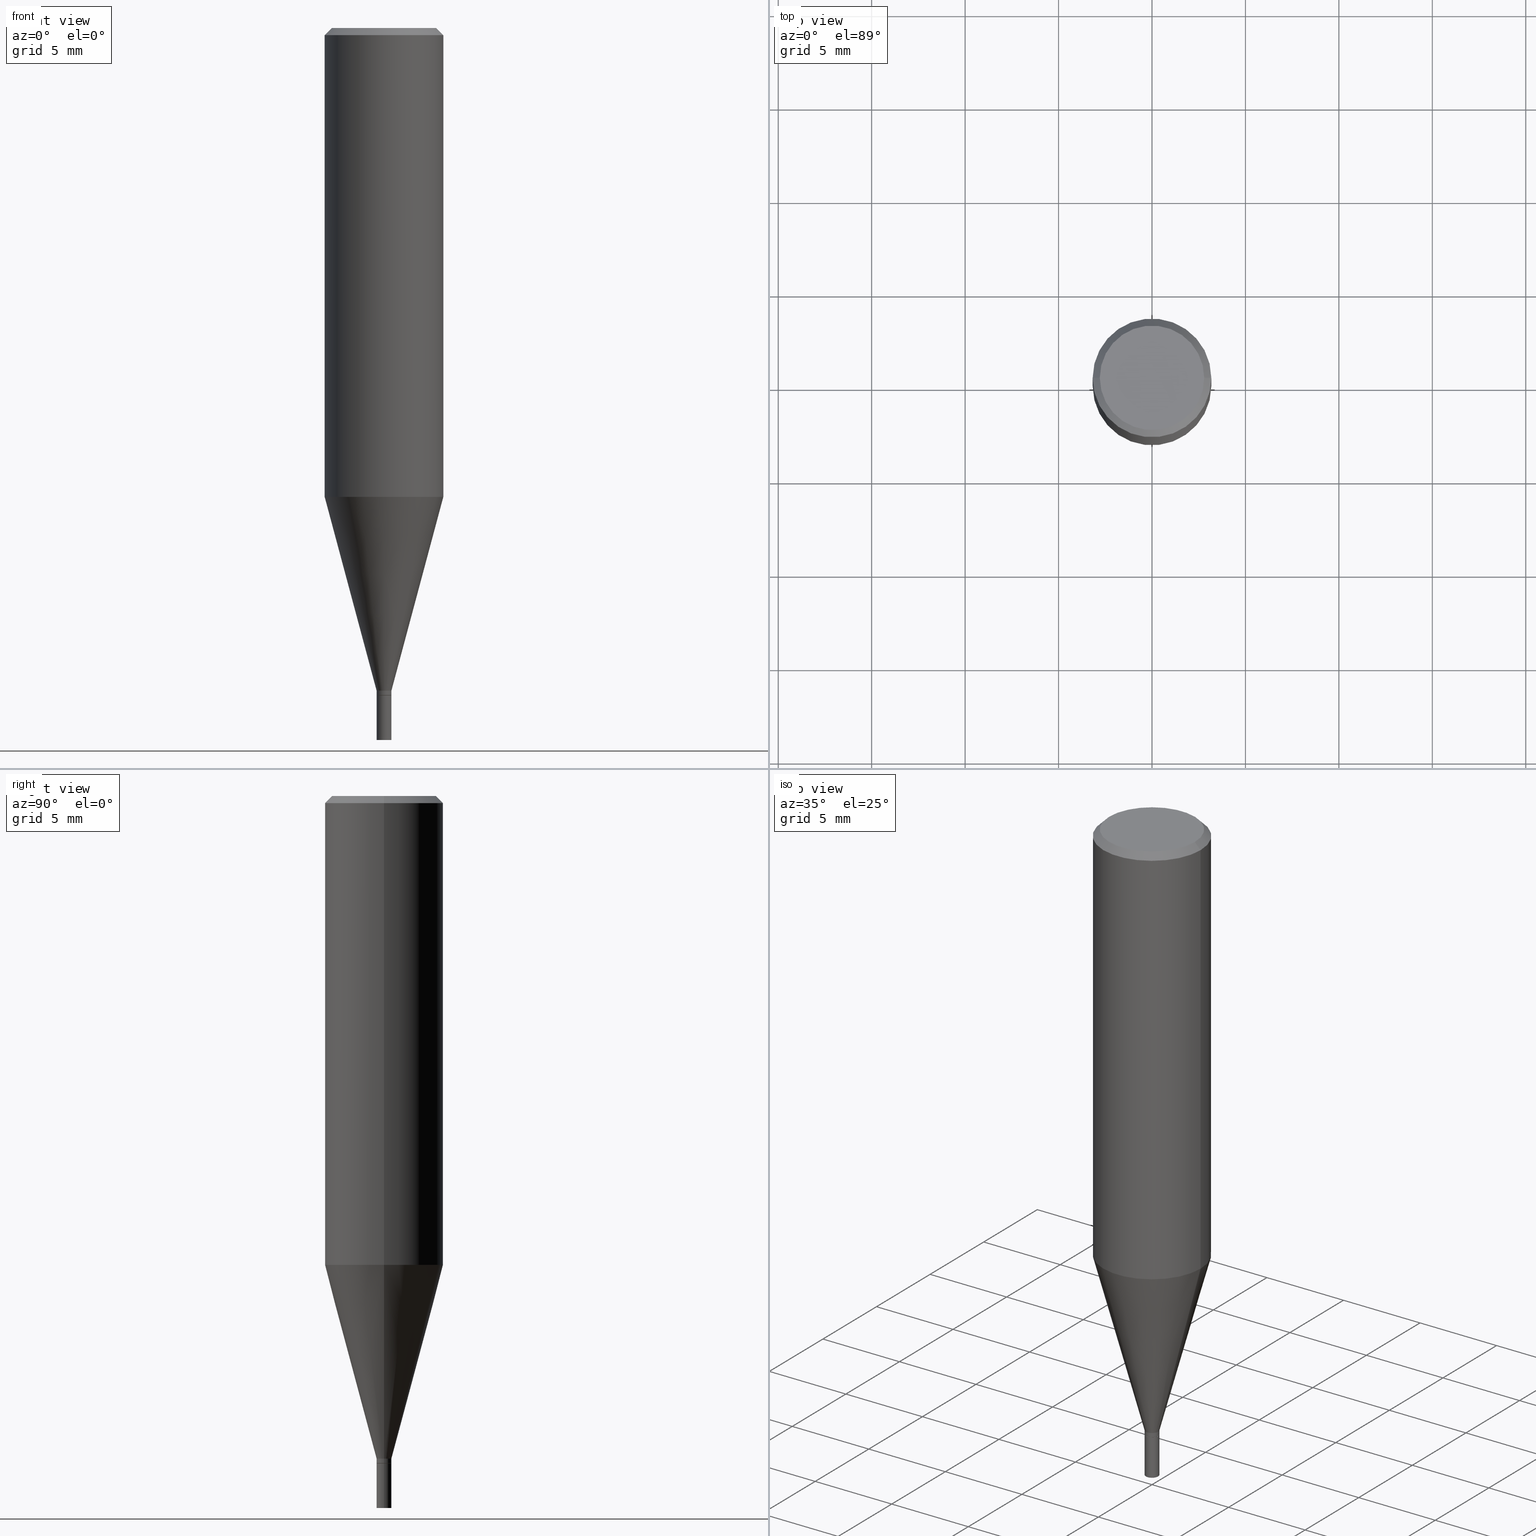
[diagram: canonical four-view strip — front | top / right | iso, engineering-drawing reading convention]
A machine part, canonical four-view strip (front | top / right | iso — engineering-drawing reading convention). The complete STEP part file that produces these views, byte-faithful:
ISO-10303-21;
HEADER;
FILE_DESCRIPTION (( 'STEP AP203' ),
    '1' );
FILE_NAME ('05274.STEP',
    '2024-03-14T18:02:43',
    ( '' ),
    ( '' ),
    'SwSTEP 2.0',
    'SolidWorks 2023',
    '' );
FILE_SCHEMA (( 'CONFIG_CONTROL_DESIGN' ));
ENDSEC;

DATA;
#1 = ORIENTED_EDGE ( 'NONE', *, *, #149, .F. ) ;
#2 = LOCAL_TIME ( 14, 2, 43.00000000000000000, #122 ) ;
#3 = APPROVAL ( #160, 'UNSPECIFIED' ) ;
#4 =( CONVERSION_BASED_UNIT ( 'INCH', #390 ) LENGTH_UNIT ( ) NAMED_UNIT ( #38 ) );
#5 = MECHANICAL_CONTEXT ( 'NONE', #187, 'mechanical' ) ;
#6 = ORIENTED_EDGE ( 'NONE', *, *, #9, .T. ) ;
#7 = APPROVAL_ROLE ( '' ) ;
#8 = EDGE_LOOP ( 'NONE', ( #302, #44, #381, #288 ) ) ;
#9 = EDGE_CURVE ( 'NONE', #235, #320, #152, .T. ) ;
#10 = DIRECTION ( 'NONE',  ( 1.000000000000000000, -6.982962677686255667E-15, 0.000000000000000000 ) ) ;
#11 = EDGE_LOOP ( 'NONE', ( #148, #347, #136, #71 ) ) ;
#12 = ADVANCED_BREP_SHAPE_REPRESENTATION ( '05274', ( #406, #81, #265 ), #365 ) ;
#13 = VECTOR ( 'NONE', #144, 39.37007874015747433 ) ;
#14 = ORIENTED_EDGE ( 'NONE', *, *, #336, .F. ) ;
#15 = CARTESIAN_POINT ( 'NONE',  ( 3.413874453434450954E-29, -4.874107949025031235E-15, -1.396000000000000130 ) ) ;
#16 = CC_DESIGN_DATE_AND_TIME_ASSIGNMENT ( #372, #268, ( #105 ) ) ;
#17 = EDGE_LOOP ( 'NONE', ( #223, #84, #396, #133 ) ) ;
#18 = LINE ( 'NONE', #394, #354 ) ;
#19 = CARTESIAN_POINT ( 'NONE',  ( 0.01559999999999999928, -5.346156226036624733E-15, -1.500000000000000222 ) ) ;
#20 = ORIENTED_EDGE ( 'NONE', *, *, #272, .T. ) ;
#21 = DIRECTION ( 'NONE',  ( 0.2588190451025213501, 1.565188264969621968E-15, 0.9659258262890682012 ) ) ;
#22 = CONICAL_SURFACE ( 'NONE', #79, 0.1250000000000000000, 0.7853981633974442822 ) ;
#23 = ORIENTED_EDGE ( 'NONE', *, *, #67, .F. ) ;
#24 = DIRECTION ( 'NONE',  ( 1.000000000000000000, -6.982962677686266711E-15, 4.880309236314112093E-29 ) ) ;
#25 = CARTESIAN_POINT ( 'NONE',  ( 3.668203209277705088E-31, -5.237222008264718399E-17, -0.01499999999999999944 ) ) ;
#26 = VERTEX_POINT ( 'NONE', #317 ) ;
#27 = CARTESIAN_POINT ( 'NONE',  ( 3.668203209277705088E-31, -5.237222008264718399E-17, -0.01499999999999999944 ) ) ;
#28 = EDGE_CURVE ( 'NONE', #446, #207, #161, .T. ) ;
#29 = CARTESIAN_POINT ( 'NONE',  ( 3.576687321579069994E-29, -5.368277968210015545E-15, -1.500000000000000222 ) ) ;
#30 = VERTEX_POINT ( 'NONE', #164 ) ;
#31 = DIRECTION ( 'NONE',  ( 1.000000000000000000, -6.982962677686250144E-15, 0.000000000000000000 ) ) ;
#32 = DIRECTION ( 'NONE',  ( -1.000000000000000000, 6.982962677686265922E-15, -4.876176775795935793E-29 ) ) ;
#33 = FACE_OUTER_BOUND ( 'NONE', #377, .T. ) ;
#34 = CYLINDRICAL_SURFACE ( 'NONE', #335, 0.01559999999999991949 ) ;
#35 = CIRCLE ( 'NONE', #259, 0.01559999999999999928 ) ;
#36 = AXIS2_PLACEMENT_3D ( 'NONE', #64, #89, #362 ) ;
#37 = EDGE_CURVE ( 'NONE', #320, #235, #184, .T. ) ;
#38 = DIMENSIONAL_EXPONENTS ( 1.000000000000000000, 0.000000000000000000, 0.000000000000000000, 0.000000000000000000, 0.000000000000000000, 0.000000000000000000, 0.000000000000000000 ) ;
#39 = PERSON_AND_ORGANIZATION ( #188, #180 ) ;
#40 = ORIENTED_EDGE ( 'NONE', *, *, #416, .F. ) ;
#41 = AXIS2_PLACEMENT_3D ( 'NONE', #256, #409, #411 ) ;
#42 = AXIS2_PLACEMENT_3D ( 'NONE', #54, #326, #24 ) ;
#43 = EDGE_CURVE ( 'NONE', #282, #320, #426, .T. ) ;
#44 = ORIENTED_EDGE ( 'NONE', *, *, #67, .T. ) ;
#45 = PERSON_AND_ORGANIZATION ( #188, #180 ) ;
#46 = CARTESIAN_POINT ( 'NONE',  ( 3.437106407093210258E-29, -4.907277021744042169E-15, -1.405500000000000416 ) ) ;
#47 = ORIENTED_EDGE ( 'NONE', *, *, #233, .F. ) ;
#48 = PERSON_AND_ORGANIZATION ( #188, #180 ) ;
#49 = CIRCLE ( 'NONE', #299, 0.1250000000000000000 ) ;
#50 = CARTESIAN_POINT ( 'NONE',  ( 3.413874453434450954E-29, -4.874107949025031235E-15, -1.396000000000000130 ) ) ;
#51 = CARTESIAN_POINT ( 'NONE',  ( 3.413874453434450954E-29, -4.874107949025031235E-15, -1.396000000000000130 ) ) ;
#52 = CARTESIAN_POINT ( 'NONE',  ( 2.415422900103406254E-29, -3.448583747948643968E-15, -0.9877136416519656237 ) ) ;
#53 = ORIENTED_EDGE ( 'NONE', *, *, #159, .F. ) ;
#54 = CARTESIAN_POINT ( 'NONE',  ( -2.818101529822314113E-45, 4.023502110292317032E-31, 1.152376805091402685E-16 ) ) ;
#55 = DIRECTION ( 'NONE',  ( -2.445468806185136597E-29, 3.491481338843145583E-15, 1.000000000000000000 ) ) ;
#56 = EDGE_LOOP ( 'NONE', ( #428, #130, #165, #40 ) ) ;
#57 = DIRECTION ( 'NONE',  ( -1.000000000000000000, 6.982962677686266711E-15, 0.000000000000000000 ) ) ;
#58 = CIRCLE ( 'NONE', #369, 0.01559999999999999928 ) ;
#59 = DIRECTION ( 'NONE',  ( 1.000000000000000000, -6.982962677686266711E-15, 4.876176775795935793E-29 ) ) ;
#60 = DIRECTION ( 'NONE',  ( 2.445468806185136597E-29, -3.491481338843145583E-15, -1.000000000000000000 ) ) ;
#61 = EDGE_CURVE ( 'NONE', #339, #282, #185, .T. ) ;
#62 = CARTESIAN_POINT ( 'NONE',  ( 0.000000000000000000, 0.000000000000000000, 0.000000000000000000 ) ) ;
#63 = EDGE_LOOP ( 'NONE', ( #110, #98 ) ) ;
#64 = CARTESIAN_POINT ( 'NONE',  ( 3.413874453434450954E-29, -4.874107949025031235E-15, -1.396000000000000130 ) ) ;
#65 = LINE ( 'NONE', #366, #192 ) ;
#66 = FACE_OUTER_BOUND ( 'NONE', #250, .T. ) ;
#67 = EDGE_CURVE ( 'NONE', #124, #310, #126, .T. ) ;
#68 = UNCERTAINTY_MEASURE_WITH_UNIT (LENGTH_MEASURE( 1.000000000000000082E-05 ), #4, 'distance_accuracy_value', 'NONE');
#69 = CIRCLE ( 'NONE', #230, 0.01509999999999999884 ) ;
#70 = CARTESIAN_POINT ( 'NONE',  ( -0.01559999999999992122, -4.796432354965466915E-15, -1.405500000000000416 ) ) ;
#71 = ORIENTED_EDGE ( 'NONE', *, *, #312, .F. ) ;
#72 = CIRCLE ( 'NONE', #90, 0.1100000000000000006 ) ;
#73 =( NAMED_UNIT ( * ) PLANE_ANGLE_UNIT ( ) SI_UNIT ( $, .RADIAN. ) );
#74 = PERSON_AND_ORGANIZATION_ROLE ( 'creator' ) ;
#75 = COORDINATED_UNIVERSAL_TIME_OFFSET ( 5, 0, .BEHIND. ) ;
#76 = APPROVAL_DATE_TIME ( #340, #433 ) ;
#77 = ADVANCED_FACE ( 'NONE', ( #280 ), #308, .T. ) ;
#78 = ORIENTED_EDGE ( 'NONE', *, *, #279, .F. ) ;
#79 = AXIS2_PLACEMENT_3D ( 'NONE', #25, #463, #290 ) ;
#80 = APPROVAL_ROLE ( '' ) ;
#81 = MANIFOLD_SOLID_BREP ( 'Body-Move/Copy2[2]', #237 ) ;
#82 = ORIENTED_EDGE ( 'NONE', *, *, #416, .T. ) ;
#83 = DIRECTION ( 'NONE',  ( 1.000000000000000000, -6.982962677686266711E-15, 0.000000000000000000 ) ) ;
#84 = ORIENTED_EDGE ( 'NONE', *, *, #37, .T. ) ;
#85 = PERSON_AND_ORGANIZATION_ROLE ( 'design_supplier' ) ;
#86 = CC_DESIGN_PERSON_AND_ORGANIZATION_ASSIGNMENT ( #125, #449, ( #186 ) ) ;
#87 = CYLINDRICAL_SURFACE ( 'NONE', #431, 0.01559999999999999928 ) ;
#88 = VERTEX_POINT ( 'NONE', #206 ) ;
#89 = DIRECTION ( 'NONE',  ( -2.445468806185136597E-29, 3.491481338843145583E-15, 1.000000000000000000 ) ) ;
#90 = AXIS2_PLACEMENT_3D ( 'NONE', #391, #437, #179 ) ;
#91 = CARTESIAN_POINT ( 'NONE',  ( 0.1250000000000000000, -9.099344698040885245E-16, -0.01499999999999999944 ) ) ;
#92 = ORIENTED_EDGE ( 'NONE', *, *, #195, .F. ) ;
#93 = FACE_OUTER_BOUND ( 'NONE', #162, .T. ) ;
#94 = DIRECTION ( 'NONE',  ( 1.000000000000000000, -6.982962677686250144E-15, 0.000000000000000000 ) ) ;
#95 = CARTESIAN_POINT ( 'NONE',  ( 0.01559999999999991949, -1.089342177719052000E-16, 7.606835770241620664E-31 ) ) ;
#96 = DIRECTION ( 'NONE',  ( 1.000000000000000000, -6.982962677686266711E-15, 0.000000000000000000 ) ) ;
#97 = APPROVAL ( #232, 'UNSPECIFIED' ) ;
#98 = ORIENTED_EDGE ( 'NONE', *, *, #448, .T. ) ;
#99 = DIRECTION ( 'NONE',  ( -0.7071067811865446862, 2.468850131082227084E-15, -0.7071067811865503483 ) ) ;
#100 = FACE_OUTER_BOUND ( 'NONE', #116, .T. ) ;
#101 = CONICAL_SURFACE ( 'NONE', #36, 0.01559999999999991775, 0.2617993877991500740 ) ;
#102 = EDGE_LOOP ( 'NONE', ( #261, #432, #275, #342 ) ) ;
#103 = DIRECTION ( 'NONE',  ( 1.000000000000000000, -6.982962677686283277E-15, 0.000000000000000000 ) ) ;
#104 = PLANE ( 'NONE',  #238 ) ;
#105 = PRODUCT_DEFINITION ( 'UNKNOWN', '', #346, #258 ) ;
#106 = DIRECTION ( 'NONE',  ( -2.445468806185136597E-29, 3.491481338843145583E-15, 1.000000000000000000 ) ) ;
#107 = CARTESIAN_POINT ( 'NONE',  ( 0.000000000000000000, 0.000000000000000000, 0.000000000000000000 ) ) ;
#108 = CARTESIAN_POINT ( 'NONE',  ( 0.000000000000000000, 0.000000000000000000, 0.000000000000000000 ) ) ;
#109 = CONICAL_SURFACE ( 'NONE', #197, 0.01559999999999991775, 0.2617993877991500740 ) ;
#110 = ORIENTED_EDGE ( 'NONE', *, *, #255, .T. ) ;
#111 = CC_DESIGN_PERSON_AND_ORGANIZATION_ASSIGNMENT ( #228, #74, ( #105 ) ) ;
#112 = CIRCLE ( 'NONE', #345, 0.1250000000000000000 ) ;
#113 = CC_DESIGN_SECURITY_CLASSIFICATION ( #186, ( #346 ) ) ;
#114 = APPROVAL_ROLE ( '' ) ;
#115 = PERSON_AND_ORGANIZATION_ROLE ( 'design_owner' ) ;
#116 = EDGE_LOOP ( 'NONE', ( #23, #413, #355, #424 ) ) ;
#117 = VERTEX_POINT ( 'NONE', #19 ) ;
#118 = DATE_TIME_ROLE ( 'classification_date' ) ;
#119 = CARTESIAN_POINT ( 'NONE',  ( 3.668203209277704895E-29, -5.237222008264718177E-15, -1.500000000000000222 ) ) ;
#120 = EDGE_CURVE ( 'NONE', #286, #117, #128, .T. ) ;
#121 = EDGE_LOOP ( 'NONE', ( #315, #267 ) ) ;
#122 = COORDINATED_UNIVERSAL_TIME_OFFSET ( 5, 0, .BEHIND. ) ;
#123 = DIRECTION ( 'NONE',  ( -2.445468806185136597E-29, 3.491481338843145583E-15, 1.000000000000000000 ) ) ;
#124 = VERTEX_POINT ( 'NONE', #422 ) ;
#125 = PERSON_AND_ORGANIZATION ( #188, #180 ) ;
#126 = LINE ( 'NONE', #455, #219 ) ;
#127 = FACE_OUTER_BOUND ( 'NONE', #389, .T. ) ;
#128 = CIRCLE ( 'NONE', #138, 0.01559999999999999928 ) ;
#129 = CONICAL_SURFACE ( 'NONE', #309, 0.01509999999999999884, 0.7853981633974718157 ) ;
#130 = ORIENTED_EDGE ( 'NONE', *, *, #28, .T. ) ;
#131 = EDGE_CURVE ( 'NONE', #30, #282, #132, .T. ) ;
#132 = LINE ( 'NONE', #274, #291 ) ;
#133 = ORIENTED_EDGE ( 'NONE', *, *, #141, .F. ) ;
#134 = DIRECTION ( 'NONE',  ( -2.445468806185136877E-29, 3.491481338843145188E-15, 1.000000000000000000 ) ) ;
#135 = DIRECTION ( 'NONE',  ( 0.7071067811865642261, -2.468850131082431399E-15, 0.7071067811865309194 ) ) ;
#136 = ORIENTED_EDGE ( 'NONE', *, *, #195, .T. ) ;
#137 = DIRECTION ( 'NONE',  ( -2.445468806185136597E-29, 3.491481338843145583E-15, 1.000000000000000000 ) ) ;
#138 = AXIS2_PLACEMENT_3D ( 'NONE', #119, #387, #169 ) ;
#139 = DIRECTION ( 'NONE',  ( 1.000000000000000000, -6.982962677686266711E-15, 4.876176775795935793E-29 ) ) ;
#140 = LOCAL_TIME ( 14, 2, 43.00000000000000000, #75 ) ;
#141 = EDGE_CURVE ( 'NONE', #124, #26, #49, .T. ) ;
#142 = DIRECTION ( 'NONE',  ( 1.000000000000000000, -6.982962677686265922E-15, 4.876176775795935793E-29 ) ) ;
#143 = CARTESIAN_POINT ( 'NONE',  ( 0.000000000000000000, 0.000000000000000000, 0.000000000000000000 ) ) ;
#144 = DIRECTION ( 'NONE',  ( -0.2588190451025213501, 5.211531920934551042E-15, 0.9659258262890682012 ) ) ;
#145 = VECTOR ( 'NONE', #311, 39.37007874015748143 ) ;
#146 = DIRECTION ( 'NONE',  ( -2.445468806185136597E-29, 3.491481338843145583E-15, 1.000000000000000000 ) ) ;
#147 = AXIS2_PLACEMENT_3D ( 'NONE', #400, #212, #331 ) ;
#148 = ORIENTED_EDGE ( 'NONE', *, *, #131, .F. ) ;
#149 = EDGE_CURVE ( 'NONE', #26, #124, #112, .T. ) ;
#150 = APPLICATION_PROTOCOL_DEFINITION ( 'international standard', 'config_control_design', 1994, #187 ) ;
#151 = DIRECTION ( 'NONE',  ( 1.000000000000000000, 0.000000000000000000, 0.000000000000000000 ) ) ;
#152 = CIRCLE ( 'NONE', #218, 0.01559999999999991775 ) ;
#153 = AXIS2_PLACEMENT_3D ( 'NONE', #427, #462, #292 ) ;
#154 = EDGE_LOOP ( 'NONE', ( #450, #325, #47, #53 ) ) ;
#155 = DIRECTION ( 'NONE',  ( -2.445468806185136877E-29, 3.491481338843145188E-15, 1.000000000000000000 ) ) ;
#156 = ORIENTED_EDGE ( 'NONE', *, *, #120, .F. ) ;
#157 = LOCAL_TIME ( 14, 2, 43.00000000000000000, #375 ) ;
#158 = DIRECTION ( 'NONE',  ( -2.445468806185136597E-29, 3.491481338843145583E-15, 1.000000000000000000 ) ) ;
#159 = EDGE_CURVE ( 'NONE', #117, #420, #380, .T. ) ;
#160 = APPROVAL_STATUS ( 'not_yet_approved' ) ;
#161 = LINE ( 'NONE', #91, #145 ) ;
#162 = EDGE_LOOP ( 'NONE', ( #20, #273, #368, #92 ) ) ;
#163 = DIRECTION ( 'NONE',  ( 1.000000000000000000, -6.982962677686257244E-15, 0.000000000000000000 ) ) ;
#164 = CARTESIAN_POINT ( 'NONE',  ( -0.01509999999999999884, -4.799081582139578116E-15, -1.406000000000000139 ) ) ;
#165 = ORIENTED_EDGE ( 'NONE', *, *, #323, .T. ) ;
#166 = EDGE_CURVE ( 'NONE', #310, #207, #453, .T. ) ;
#167 = AXIS2_PLACEMENT_3D ( 'NONE', #108, #358, #139 ) ;
#168 = APPROVAL_PERSON_ORGANIZATION ( #39, #433, #7 ) ;
#169 = DIRECTION ( 'NONE',  ( 1.000000000000000000, -6.982962677686283277E-15, 0.000000000000000000 ) ) ;
#170 = CARTESIAN_POINT ( 'NONE',  ( 3.438329141496302499E-29, -4.909022762413463673E-15, -1.406000000000000139 ) ) ;
#171 = DIRECTION ( 'NONE',  ( -2.445468806185136877E-29, 3.491481338843145188E-15, 1.000000000000000000 ) ) ;
#172 = ORIENTED_EDGE ( 'NONE', *, *, #28, .F. ) ;
#173 = PLANE ( 'NONE',  #271 ) ;
#174 = FACE_OUTER_BOUND ( 'NONE', #201, .T. ) ;
#175 = ADVANCED_FACE ( 'NONE', ( #419 ), #87, .T. ) ;
#176 = VERTEX_POINT ( 'NONE', #220 ) ;
#177 = CARTESIAN_POINT ( 'NONE',  ( 0.01559999999999992122, -5.016211239515947147E-15, -1.405500000000000416 ) ) ;
#178 = VECTOR ( 'NONE', #171, 39.37007874015748143 ) ;
#179 = DIRECTION ( 'NONE',  ( 1.000000000000000000, -6.982962677686266711E-15, 4.880309236314112093E-29 ) ) ;
#180 = ORGANIZATION ( 'UNSPECIFIED', 'UNSPECIFIED', '' ) ;
#181 = CARTESIAN_POINT ( 'NONE',  ( -0.01559999999999999928, -4.962277718560516065E-15, -1.406000000000000139 ) ) ;
#182 = CARTESIAN_POINT ( 'NONE',  ( 0.1250000000000000000, -9.252425547934304180E-16, -0.01499999999999999944 ) ) ;
#183 = CC_DESIGN_PERSON_AND_ORGANIZATION_ASSIGNMENT ( #305, #115, ( #319 ) ) ;
#184 = CIRCLE ( 'NONE', #444, 0.01559999999999991775 ) ;
#185 = CIRCLE ( 'NONE', #423, 0.01559999999999992122 ) ;
#186 = SECURITY_CLASSIFICATION ( '', '', #199 ) ;
#187 = APPLICATION_CONTEXT ( 'configuration controlled 3d designs of mechanical parts and assemblies' ) ;
#188 = PERSON ( 'UNSPECIFIED', 'UNSPECIFIED', 'UNSPECIFIED', ('UNSPECIFIED'), ('UNSPECIFIED'), ('UNSPECIFIED') ) ;
#189 = DIRECTION ( 'NONE',  ( 0.000000000000000000, 0.000000000000000000, 1.000000000000000000 ) ) ;
#190 = ADVANCED_FACE ( 'NONE', ( #100 ), #440, .T. ) ;
#191 = APPLICATION_PROTOCOL_DEFINITION ( 'international standard', 'config_control_design', 1994, #262 ) ;
#192 = VECTOR ( 'NONE', #135, 39.37007874015748143 ) ;
#193 = ORIENTED_EDGE ( 'NONE', *, *, #43, .T. ) ;
#194 = CARTESIAN_POINT ( 'NONE',  ( -0.01559999999999991949, 1.108446667785750569E-16, -7.673538740797613077E-31 ) ) ;
#195 = EDGE_CURVE ( 'NONE', #88, #339, #65, .T. ) ;
#196 = DIRECTION ( 'NONE',  ( -2.445468806185136877E-29, 3.491481338843145188E-15, 1.000000000000000000 ) ) ;
#197 = AXIS2_PLACEMENT_3D ( 'NONE', #51, #356, #163 ) ;
#198 = ORIENTED_EDGE ( 'NONE', *, *, #374, .F. ) ;
#199 = SECURITY_CLASSIFICATION_LEVEL ( 'unclassified' ) ;
#200 = DIRECTION ( 'NONE',  ( -2.445468806185136597E-29, 3.491481338843145583E-15, 1.000000000000000000 ) ) ;
#201 = EDGE_LOOP ( 'NONE', ( #198, #156 ) ) ;
#202 = DIRECTION ( 'NONE',  ( 1.000000000000000000, -6.982962677686266711E-15, 4.876176775795935793E-29 ) ) ;
#203 = ADVANCED_FACE ( 'NONE', ( #296 ), #399, .T. ) ;
#204 = VERTEX_POINT ( 'NONE', #181 ) ;
#205 = CARTESIAN_POINT ( 'NONE',  ( 3.438329141496302499E-29, -4.909022762413463673E-15, -1.406000000000000139 ) ) ;
#206 = CARTESIAN_POINT ( 'NONE',  ( 0.01509999999999999884, -5.014465498846526433E-15, -1.406000000000000139 ) ) ;
#207 = VERTEX_POINT ( 'NONE', #182 ) ;
#208 = CIRCLE ( 'NONE', #41, 0.01559999999999992122 ) ;
#209 = CARTESIAN_POINT ( 'NONE',  ( 3.668203209277705088E-31, -5.237222008264718399E-17, -0.01499999999999999944 ) ) ;
#210 = VECTOR ( 'NONE', #459, 39.37007874015748143 ) ;
#211 = APPROVAL_PERSON_ORGANIZATION ( #443, #97, #114 ) ;
#212 = DIRECTION ( 'NONE',  ( -2.445468806185136597E-29, 3.491481338843145583E-15, 1.000000000000000000 ) ) ;
#213 = CARTESIAN_POINT ( 'NONE',  ( -0.1250000000000000000, 8.204981146281362596E-16, -0.01499999999999999944 ) ) ;
#214 = ADVANCED_FACE ( 'NONE', ( #33 ), #333, .F. ) ;
#215 = DIRECTION ( 'NONE',  ( 1.000000000000000000, -6.982962677686266711E-15, 4.876176775795935793E-29 ) ) ;
#216 = CARTESIAN_POINT ( 'NONE',  ( 3.438329141496302499E-29, -4.909022762413463673E-15, -1.406000000000000139 ) ) ;
#217 = CARTESIAN_POINT ( 'NONE',  ( -0.01559999999999991775, -4.763263282246455981E-15, -1.396000000000000130 ) ) ;
#218 = AXIS2_PLACEMENT_3D ( 'NONE', #15, #55, #379 ) ;
#219 = VECTOR ( 'NONE', #155, 39.37007874015748143 ) ;
#220 = CARTESIAN_POINT ( 'NONE',  ( -0.1100000000000000006, 7.943120045868129172E-16, 1.152376805091348205E-16 ) ) ;
#221 = CARTESIAN_POINT ( 'NONE',  ( -0.01559999999999999928, -4.962277718560516065E-15, -1.500000000000000222 ) ) ;
#222 = EDGE_CURVE ( 'NONE', #320, #124, #430, .T. ) ;
#223 = ORIENTED_EDGE ( 'NONE', *, *, #222, .F. ) ;
#224 =( NAMED_UNIT ( * ) SI_UNIT ( $, .STERADIAN. ) SOLID_ANGLE_UNIT ( ) );
#225 = CONICAL_SURFACE ( 'NONE', #461, 0.1250000000000000000, 0.7853981633974442822 ) ;
#226 = ADVANCED_FACE ( 'NONE', ( #260 ), #300, .T. ) ;
#227 = CALENDAR_DATE ( 2024, 14, 3 ) ;
#228 = PERSON_AND_ORGANIZATION ( #188, #180 ) ;
#229 = PERSON_AND_ORGANIZATION ( #188, #180 ) ;
#230 = AXIS2_PLACEMENT_3D ( 'NONE', #367, #457, #334 ) ;
#231 = LOCAL_TIME ( 14, 2, 43.00000000000000000, #313 ) ;
#232 = APPROVAL_STATUS ( 'not_yet_approved' ) ;
#233 = EDGE_CURVE ( 'NONE', #420, #204, #35, .T. ) ;
#234 = CALENDAR_DATE ( 2024, 14, 3 ) ;
#235 = VERTEX_POINT ( 'NONE', #253 ) ;
#236 = CARTESIAN_POINT ( 'NONE',  ( 0.000000000000000000, 0.000000000000000000, 0.000000000000000000 ) ) ;
#237 = CLOSED_SHELL ( 'NONE', ( #297, #441, #303, #226, #404, #357, #190, #398, #338, #370, #77, #203 ) ) ;
#238 = AXIS2_PLACEMENT_3D ( 'NONE', #29, #460, #294 ) ;
#239 = ORIENTED_EDGE ( 'NONE', *, *, #255, .F. ) ;
#240 = APPROVAL_PERSON_ORGANIZATION ( #45, #3, #80 ) ;
#241 = LINE ( 'NONE', #353, #283 ) ;
#242 = PRODUCT_RELATED_PRODUCT_CATEGORY ( 'detail', '', ( #319 ) ) ;
#243 = DIRECTION ( 'NONE',  ( -0.7071067811865642261, 7.493145998870414114E-15, 0.7071067811865309194 ) ) ;
#244 = EDGE_LOOP ( 'NONE', ( #6, #278, #1, #458 ) ) ;
#245 = PLANE ( 'NONE',  #153 ) ;
#246 = PRODUCT_DEFINITION_SHAPE ( 'NONE', 'NONE',  #105 ) ;
#247 = ORIENTED_EDGE ( 'NONE', *, *, #120, .T. ) ;
#248 = FACE_OUTER_BOUND ( 'NONE', #121, .T. ) ;
#249 = CARTESIAN_POINT ( 'NONE',  ( 3.438329141496302499E-29, -4.909022762413463673E-15, -1.406000000000000139 ) ) ;
#250 = EDGE_LOOP ( 'NONE', ( #442, #193, #328, #269 ) ) ;
#251 = AXIS2_PLACEMENT_3D ( 'NONE', #316, #295, #202 ) ;
#252 = CARTESIAN_POINT ( 'NONE',  ( 0.1100000000000000006, -8.322946247794783877E-16, 1.152376805091458645E-16 ) ) ;
#253 = CARTESIAN_POINT ( 'NONE',  ( 0.01559999999999991775, -4.983042166796936213E-15, -1.396000000000000130 ) ) ;
#254 = DIRECTION ( 'NONE',  ( -2.445468806185136597E-29, 3.491481338843145583E-15, 1.000000000000000000 ) ) ;
#255 = EDGE_CURVE ( 'NONE', #176, #446, #72, .T. ) ;
#256 = CARTESIAN_POINT ( 'NONE',  ( 3.437106407093210258E-29, -4.907277021744042169E-15, -1.405500000000000416 ) ) ;
#257 = CARTESIAN_POINT ( 'NONE',  ( 0.1250000000000000000, -8.728703347107833388E-16, 6.095220969744919741E-30 ) ) ;
#258 = DESIGN_CONTEXT ( 'detailed design', #262, 'design' ) ;
#259 = AXIS2_PLACEMENT_3D ( 'NONE', #249, #436, #363 ) ;
#260 = FACE_OUTER_BOUND ( 'NONE', #8, .T. ) ;
#261 = ORIENTED_EDGE ( 'NONE', *, *, #43, .F. ) ;
#262 = APPLICATION_CONTEXT ( 'configuration controlled 3d designs of mechanical parts and assemblies' ) ;
#263 = EDGE_CURVE ( 'NONE', #26, #207, #403, .T. ) ;
#264 = VECTOR ( 'NONE', #99, 39.37007874015748143 ) ;
#265 = AXIS2_PLACEMENT_3D ( 'NONE', #107, #189, #151 ) ;
#266 = APPROVAL_DATE_TIME ( #445, #97 ) ;
#267 = ORIENTED_EDGE ( 'NONE', *, *, #452, .F. ) ;
#268 = DATE_TIME_ROLE ( 'creation_date' ) ;
#269 = ORIENTED_EDGE ( 'NONE', *, *, #364, .F. ) ;
#270 = CARTESIAN_POINT ( 'NONE',  ( -0.01559999999999991775, -3.661834305247487555E-15, -1.396000000000000130 ) ) ;
#271 = AXIS2_PLACEMENT_3D ( 'NONE', #205, #434, #142 ) ;
#272 = EDGE_CURVE ( 'NONE', #88, #30, #69, .T. ) ;
#273 = ORIENTED_EDGE ( 'NONE', *, *, #131, .T. ) ;
#274 = CARTESIAN_POINT ( 'NONE',  ( -0.01509999999999999884, -4.801730809313688528E-15, -1.406000000000000139 ) ) ;
#275 = ORIENTED_EDGE ( 'NONE', *, *, #364, .T. ) ;
#276 = CALENDAR_DATE ( 2024, 14, 3 ) ;
#277 = DIRECTION ( 'NONE',  ( 1.000000000000000000, -6.982962677686266711E-15, 0.000000000000000000 ) ) ;
#278 = ORIENTED_EDGE ( 'NONE', *, *, #222, .T. ) ;
#279 = EDGE_CURVE ( 'NONE', #204, #420, #405, .T. ) ;
#280 = FACE_OUTER_BOUND ( 'NONE', #11, .T. ) ;
#281 = AXIS2_PLACEMENT_3D ( 'NONE', #62, #106, #298 ) ;
#282 = VERTEX_POINT ( 'NONE', #70 ) ;
#283 = VECTOR ( 'NONE', #21, 39.37007874015747433 ) ;
#284 = DIRECTION ( 'NONE',  ( 1.000000000000000000, -6.982962677686266711E-15, 0.000000000000000000 ) ) ;
#285 = DIRECTION ( 'NONE',  ( -2.445468806185136597E-29, 3.491481338843145583E-15, 1.000000000000000000 ) ) ;
#286 = VERTEX_POINT ( 'NONE', #221 ) ;
#287 = DIRECTION ( 'NONE',  ( -2.445468806185136597E-29, 3.491481338843145583E-15, 1.000000000000000000 ) ) ;
#288 = ORIENTED_EDGE ( 'NONE', *, *, #263, .F. ) ;
#289 = FACE_OUTER_BOUND ( 'NONE', #244, .T. ) ;
#290 = DIRECTION ( 'NONE',  ( -1.000000000000000000, 6.982962677686266711E-15, 0.000000000000000000 ) ) ;
#291 = VECTOR ( 'NONE', #243, 39.37007874015748143 ) ;
#292 = DIRECTION ( 'NONE',  ( -1.000000000000000000, 6.982962677686265922E-15, -4.876176775795935793E-29 ) ) ;
#293 = LOCAL_TIME ( 14, 2, 43.00000000000000000, #421 ) ;
#294 = DIRECTION ( 'NONE',  ( 1.000000000000000000, -6.982962677686265922E-15, 4.876176775795935793E-29 ) ) ;
#295 = DIRECTION ( 'NONE',  ( -2.445468806185136597E-29, 3.491481338843145583E-15, 1.000000000000000000 ) ) ;
#296 = FACE_OUTER_BOUND ( 'NONE', #102, .T. ) ;
#297 = ADVANCED_FACE ( 'NONE', ( #66 ), #34, .T. ) ;
#298 = DIRECTION ( 'NONE',  ( 1.000000000000000000, -6.982962677686266711E-15, 4.876176775795935793E-29 ) ) ;
#299 = AXIS2_PLACEMENT_3D ( 'NONE', #52, #287, #96 ) ;
#300 = CYLINDRICAL_SURFACE ( 'NONE', #281, 0.1250000000000000000 ) ;
#301 = CC_DESIGN_APPROVAL ( #97, ( #105 ) ) ;
#302 = ORIENTED_EDGE ( 'NONE', *, *, #149, .T. ) ;
#303 = ADVANCED_FACE ( 'NONE', ( #360 ), #22, .T. ) ;
#304 = VECTOR ( 'NONE', #341, 39.37007874015748143 ) ;
#305 = PERSON_AND_ORGANIZATION ( #188, #180 ) ;
#306 = PERSON_AND_ORGANIZATION_ROLE ( 'creator' ) ;
#307 = ADVANCED_FACE ( 'NONE', ( #174 ), #104, .F. ) ;
#308 = CONICAL_SURFACE ( 'NONE', #329, 0.01509999999999999884, 0.7853981633974718157 ) ;
#309 = AXIS2_PLACEMENT_3D ( 'NONE', #216, #254, #383 ) ;
#310 = VERTEX_POINT ( 'NONE', #435 ) ;
#311 = DIRECTION ( 'NONE',  ( 0.7071067811865446862, -7.319954787623245001E-15, -0.7071067811865503483 ) ) ;
#312 = EDGE_CURVE ( 'NONE', #282, #339, #208, .T. ) ;
#313 = COORDINATED_UNIVERSAL_TIME_OFFSET ( 5, 0, .BEHIND. ) ;
#314 = DIRECTION ( 'NONE',  ( 1.000000000000000000, -6.982962677686257244E-15, 0.000000000000000000 ) ) ;
#315 = ORIENTED_EDGE ( 'NONE', *, *, #272, .F. ) ;
#316 = CARTESIAN_POINT ( 'NONE',  ( 0.000000000000000000, 0.000000000000000000, 0.000000000000000000 ) ) ;
#317 = CARTESIAN_POINT ( 'NONE',  ( 0.1249999999999999861, -4.321454082659426912E-15, -0.9877136416519656237 ) ) ;
#318 = CIRCLE ( 'NONE', #412, 0.1250000000000000000 ) ;
#319 = PRODUCT ( '05274', '05274', '', ( #5 ) ) ;
#320 = VERTEX_POINT ( 'NONE', #270 ) ;
#321 = AXIS2_PLACEMENT_3D ( 'NONE', #170, #397, #31 ) ;
#322 = DIRECTION ( 'NONE',  ( -2.445468806185136597E-29, 3.491481338843145583E-15, 1.000000000000000000 ) ) ;
#323 = EDGE_CURVE ( 'NONE', #207, #310, #318, .T. ) ;
#324 = DIRECTION ( 'NONE',  ( 2.438088387897960049E-29, -3.491481338843145188E-15, -1.000000000000000000 ) ) ;
#325 = ORIENTED_EDGE ( 'NONE', *, *, #336, .T. ) ;
#326 = DIRECTION ( 'NONE',  ( -2.445468806185136597E-29, 3.491481338843145583E-15, 1.000000000000000000 ) ) ;
#327 = DIRECTION ( 'NONE',  ( 1.000000000000000000, -6.982962677686266711E-15, 4.876176775795935793E-29 ) ) ;
#328 = ORIENTED_EDGE ( 'NONE', *, *, #9, .F. ) ;
#329 = AXIS2_PLACEMENT_3D ( 'NONE', #351, #285, #94 ) ;
#330 = FACE_OUTER_BOUND ( 'NONE', #63, .T. ) ;
#331 = DIRECTION ( 'NONE',  ( 1.000000000000000000, -6.982962677686283277E-15, 0.000000000000000000 ) ) ;
#332 = CC_DESIGN_DATE_AND_TIME_ASSIGNMENT ( #348, #118, ( #186 ) ) ;
#333 = PLANE ( 'NONE',  #438 ) ;
#334 = DIRECTION ( 'NONE',  ( 1.000000000000000000, -6.982962677686250144E-15, 0.000000000000000000 ) ) ;
#335 = AXIS2_PLACEMENT_3D ( 'NONE', #466, #395, #59 ) ;
#336 = EDGE_CURVE ( 'NONE', #286, #204, #18, .T. ) ;
#337 = AXIS2_PLACEMENT_3D ( 'NONE', #143, #146, #327 ) ;
#338 = ADVANCED_FACE ( 'NONE', ( #330 ), #245, .F. ) ;
#339 = VERTEX_POINT ( 'NONE', #177 ) ;
#340 = DATE_AND_TIME ( #447, #2 ) ;
#341 = DIRECTION ( 'NONE',  ( -2.445468806185136877E-29, 3.491481338843145188E-15, 1.000000000000000000 ) ) ;
#342 = ORIENTED_EDGE ( 'NONE', *, *, #37, .F. ) ;
#343 = CC_DESIGN_PERSON_AND_ORGANIZATION_ASSIGNMENT ( #229, #306, ( #346 ) ) ;
#344 = CARTESIAN_POINT ( 'NONE',  ( 3.668203209277705088E-31, -5.237222008264718399E-17, -0.01499999999999999944 ) ) ;
#345 = AXIS2_PLACEMENT_3D ( 'NONE', #415, #200, #83 ) ;
#346 = PRODUCT_DEFINITION_FORMATION_WITH_SPECIFIED_SOURCE ( 'ANY', '', #319, .NOT_KNOWN. ) ;
#347 = ORIENTED_EDGE ( 'NONE', *, *, #452, .T. ) ;
#348 = DATE_AND_TIME ( #276, #293 ) ;
#349 = CARTESIAN_POINT ( 'NONE',  ( 0.01559999999999999928, -1.089342177719057547E-16, 7.606835770241659199E-31 ) ) ;
#350 = LINE ( 'NONE', #95, #210 ) ;
#351 = CARTESIAN_POINT ( 'NONE',  ( 3.438329141496302499E-29, -4.909022762413463673E-15, -1.406000000000000139 ) ) ;
#352 = ORIENTED_EDGE ( 'NONE', *, *, #166, .T. ) ;
#353 = CARTESIAN_POINT ( 'NONE',  ( 0.01559999999999991775, -4.983042166796936213E-15, -1.396000000000000130 ) ) ;
#354 = VECTOR ( 'NONE', #134, 39.37007874015748143 ) ;
#355 = ORIENTED_EDGE ( 'NONE', *, *, #263, .T. ) ;
#356 = DIRECTION ( 'NONE',  ( -2.445468806185136597E-29, 3.491481338843145583E-15, 1.000000000000000000 ) ) ;
#357 = ADVANCED_FACE ( 'NONE', ( #359 ), #109, .T. ) ;
#358 = DIRECTION ( 'NONE',  ( -2.445468806185136597E-29, 3.491481338843145583E-15, 1.000000000000000000 ) ) ;
#359 = FACE_OUTER_BOUND ( 'NONE', #17, .T. ) ;
#360 = FACE_OUTER_BOUND ( 'NONE', #56, .T. ) ;
#361 = EDGE_LOOP ( 'NONE', ( #14, #247, #417, #78 ) ) ;
#362 = DIRECTION ( 'NONE',  ( 1.000000000000000000, -6.982962677686257244E-15, 0.000000000000000000 ) ) ;
#363 = DIRECTION ( 'NONE',  ( 1.000000000000000000, -6.982962677686283277E-15, 0.000000000000000000 ) ) ;
#364 = EDGE_CURVE ( 'NONE', #339, #235, #350, .T. ) ;
#365 =( GEOMETRIC_REPRESENTATION_CONTEXT ( 3 ) GLOBAL_UNCERTAINTY_ASSIGNED_CONTEXT ( ( #68 ) ) GLOBAL_UNIT_ASSIGNED_CONTEXT ( ( #4, #73, #224 ) ) REPRESENTATION_CONTEXT ( 'NONE', 'WORKASPACE' ) );
#366 = CARTESIAN_POINT ( 'NONE',  ( 0.01509999999999999884, -5.014465498846526433E-15, -1.406000000000000139 ) ) ;
#367 = CARTESIAN_POINT ( 'NONE',  ( 3.438329141496302499E-29, -4.909022762413463673E-15, -1.406000000000000139 ) ) ;
#368 = ORIENTED_EDGE ( 'NONE', *, *, #61, .F. ) ;
#369 = AXIS2_PLACEMENT_3D ( 'NONE', #429, #322, #103 ) ;
#370 = ADVANCED_FACE ( 'NONE', ( #248 ), #173, .F. ) ;
#371 = CIRCLE ( 'NONE', #321, 0.01509999999999999884 ) ;
#372 = DATE_AND_TIME ( #227, #157 ) ;
#373 = DATE_AND_TIME ( #234, #231 ) ;
#374 = EDGE_CURVE ( 'NONE', #117, #286, #58, .T. ) ;
#375 = COORDINATED_UNIVERSAL_TIME_OFFSET ( 5, 0, .BEHIND. ) ;
#376 = CIRCLE ( 'NONE', #42, 0.1100000000000000006 ) ;
#377 = EDGE_LOOP ( 'NONE', ( #385, #393 ) ) ;
#378 = APPROVAL_STATUS ( 'not_yet_approved' ) ;
#379 = DIRECTION ( 'NONE',  ( 1.000000000000000000, -6.982962677686257244E-15, 0.000000000000000000 ) ) ;
#380 = LINE ( 'NONE', #349, #401 ) ;
#381 = ORIENTED_EDGE ( 'NONE', *, *, #323, .F. ) ;
#382 = DIRECTION ( 'NONE',  ( -2.445468806185136597E-29, 3.491481338843145583E-15, 1.000000000000000000 ) ) ;
#383 = DIRECTION ( 'NONE',  ( 1.000000000000000000, -6.982962677686250144E-15, 0.000000000000000000 ) ) ;
#384 = DIRECTION ( 'NONE',  ( -2.445468806185136597E-29, 3.491481338843145583E-15, 1.000000000000000000 ) ) ;
#385 = ORIENTED_EDGE ( 'NONE', *, *, #233, .T. ) ;
#386 = CARTESIAN_POINT ( 'NONE',  ( 0.01559999999999999928, -5.017956980185370229E-15, -1.406000000000000139 ) ) ;
#387 = DIRECTION ( 'NONE',  ( -2.445468806185136597E-29, 3.491481338843145583E-15, 1.000000000000000000 ) ) ;
#388 = ADVANCED_FACE ( 'NONE', ( #456 ), #451, .T. ) ;
#389 = EDGE_LOOP ( 'NONE', ( #172, #239, #82, #352 ) ) ;
#390 = LENGTH_MEASURE_WITH_UNIT ( LENGTH_MEASURE( 0.02539999999999999897 ), #454 );
#391 = CARTESIAN_POINT ( 'NONE',  ( -2.818101529822314113E-45, 4.023502110292317032E-31, 1.152376805091402685E-16 ) ) ;
#392 = CLOSED_SHELL ( 'NONE', ( #388, #307, #175, #214 ) ) ;
#393 = ORIENTED_EDGE ( 'NONE', *, *, #279, .T. ) ;
#394 = CARTESIAN_POINT ( 'NONE',  ( -0.01559999999999999928, 1.108446667785756239E-16, -7.673538740797652489E-31 ) ) ;
#395 = DIRECTION ( 'NONE',  ( -2.445468806185136597E-29, 3.491481338843145583E-15, 1.000000000000000000 ) ) ;
#396 = ORIENTED_EDGE ( 'NONE', *, *, #465, .T. ) ;
#397 = DIRECTION ( 'NONE',  ( -2.445468806185136597E-29, 3.491481338843145583E-15, 1.000000000000000000 ) ) ;
#398 = ADVANCED_FACE ( 'NONE', ( #127 ), #225, .T. ) ;
#399 = CYLINDRICAL_SURFACE ( 'NONE', #167, 0.01559999999999991949 ) ;
#400 = CARTESIAN_POINT ( 'NONE',  ( 3.438329141496302499E-29, -4.909022762413463673E-15, -1.406000000000000139 ) ) ;
#401 = VECTOR ( 'NONE', #196, 39.37007874015748143 ) ;
#402 = CC_DESIGN_APPROVAL ( #3, ( #186 ) ) ;
#403 = LINE ( 'NONE', #257, #178 ) ;
#404 = ADVANCED_FACE ( 'NONE', ( #289 ), #101, .T. ) ;
#405 = CIRCLE ( 'NONE', #147, 0.01559999999999999928 ) ;
#406 = MANIFOLD_SOLID_BREP ( 'Body-Move/Copy2[1]', #392 ) ;
#407 = CALENDAR_DATE ( 2024, 14, 3 ) ;
#408 = CC_DESIGN_PERSON_AND_ORGANIZATION_ASSIGNMENT ( #48, #85, ( #346 ) ) ;
#409 = DIRECTION ( 'NONE',  ( -2.445468806185136597E-29, 3.491481338843145583E-15, 1.000000000000000000 ) ) ;
#410 = AXIS2_PLACEMENT_3D ( 'NONE', #344, #158, #277 ) ;
#411 = DIRECTION ( 'NONE',  ( 1.000000000000000000, -6.982962677686255667E-15, 0.000000000000000000 ) ) ;
#412 = AXIS2_PLACEMENT_3D ( 'NONE', #27, #137, #284 ) ;
#413 = ORIENTED_EDGE ( 'NONE', *, *, #141, .T. ) ;
#414 = SHAPE_DEFINITION_REPRESENTATION ( #246, #12 ) ;
#415 = CARTESIAN_POINT ( 'NONE',  ( 2.415422900103406254E-29, -3.448583747948643968E-15, -0.9877136416519656237 ) ) ;
#416 = EDGE_CURVE ( 'NONE', #176, #310, #425, .T. ) ;
#417 = ORIENTED_EDGE ( 'NONE', *, *, #159, .T. ) ;
#418 = APPROVAL_DATE_TIME ( #373, #3 ) ;
#419 = FACE_OUTER_BOUND ( 'NONE', #361, .T. ) ;
#420 = VERTEX_POINT ( 'NONE', #386 ) ;
#421 = COORDINATED_UNIVERSAL_TIME_OFFSET ( 5, 0, .BEHIND. ) ;
#422 = CARTESIAN_POINT ( 'NONE',  ( -0.1249999999999999861, -2.560405328248518341E-15, -0.9877136416519656237 ) ) ;
#423 = AXIS2_PLACEMENT_3D ( 'NONE', #46, #123, #10 ) ;
#424 = ORIENTED_EDGE ( 'NONE', *, *, #166, .F. ) ;
#425 = LINE ( 'NONE', #213, #264 ) ;
#426 = LINE ( 'NONE', #194, #304 ) ;
#427 = CARTESIAN_POINT ( 'NONE',  ( 7.681258945454893776E-16, 0.1100000000000000006, -3.264441070181759227E-16 ) ) ;
#428 = ORIENTED_EDGE ( 'NONE', *, *, #448, .F. ) ;
#429 = CARTESIAN_POINT ( 'NONE',  ( 3.668203209277704895E-29, -5.237222008264718177E-15, -1.500000000000000222 ) ) ;
#430 = LINE ( 'NONE', #217, #13 ) ;
#431 = AXIS2_PLACEMENT_3D ( 'NONE', #236, #382, #215 ) ;
#432 = ORIENTED_EDGE ( 'NONE', *, *, #312, .T. ) ;
#433 = APPROVAL ( #378, 'UNSPECIFIED' ) ;
#434 = DIRECTION ( 'NONE',  ( -2.438088387897960049E-29, 3.491481338843145188E-15, 1.000000000000000000 ) ) ;
#435 = CARTESIAN_POINT ( 'NONE',  ( -0.1250000000000000000, -8.622995643155203899E-16, -0.01499999999999999944 ) ) ;
#436 = DIRECTION ( 'NONE',  ( -2.445468806185136597E-29, 3.491481338843145583E-15, 1.000000000000000000 ) ) ;
#437 = DIRECTION ( 'NONE',  ( -2.445468806185136597E-29, 3.491481338843145583E-15, 1.000000000000000000 ) ) ;
#438 = AXIS2_PLACEMENT_3D ( 'NONE', #464, #324, #32 ) ;
#439 = CC_DESIGN_APPROVAL ( #433, ( #346 ) ) ;
#440 = CYLINDRICAL_SURFACE ( 'NONE', #337, 0.1250000000000000000 ) ;
#441 = ADVANCED_FACE ( 'NONE', ( #93 ), #129, .T. ) ;
#442 = ORIENTED_EDGE ( 'NONE', *, *, #61, .T. ) ;
#443 = PERSON_AND_ORGANIZATION ( #188, #180 ) ;
#444 = AXIS2_PLACEMENT_3D ( 'NONE', #50, #384, #314 ) ;
#445 = DATE_AND_TIME ( #407, #140 ) ;
#446 = VERTEX_POINT ( 'NONE', #252 ) ;
#447 = CALENDAR_DATE ( 2024, 14, 3 ) ;
#448 = EDGE_CURVE ( 'NONE', #446, #176, #376, .T. ) ;
#449 = PERSON_AND_ORGANIZATION_ROLE ( 'classification_officer' ) ;
#450 = ORIENTED_EDGE ( 'NONE', *, *, #374, .T. ) ;
#451 = CYLINDRICAL_SURFACE ( 'NONE', #251, 0.01559999999999999928 ) ;
#452 = EDGE_CURVE ( 'NONE', #30, #88, #371, .T. ) ;
#453 = CIRCLE ( 'NONE', #410, 0.1250000000000000000 ) ;
#454 =( LENGTH_UNIT ( ) NAMED_UNIT ( * ) SI_UNIT ( $, .METRE. ) );
#455 = CARTESIAN_POINT ( 'NONE',  ( -0.1250000000000000000, 8.881784197001252323E-16, -6.148668862818632227E-30 ) ) ;
#456 = FACE_OUTER_BOUND ( 'NONE', #154, .T. ) ;
#457 = DIRECTION ( 'NONE',  ( -2.445468806185136597E-29, 3.491481338843145583E-15, 1.000000000000000000 ) ) ;
#458 = ORIENTED_EDGE ( 'NONE', *, *, #465, .F. ) ;
#459 = DIRECTION ( 'NONE',  ( -2.445468806185136877E-29, 3.491481338843145188E-15, 1.000000000000000000 ) ) ;
#460 = DIRECTION ( 'NONE',  ( -2.438088387897960049E-29, 3.491481338843145188E-15, 1.000000000000000000 ) ) ;
#461 = AXIS2_PLACEMENT_3D ( 'NONE', #209, #60, #57 ) ;
#462 = DIRECTION ( 'NONE',  ( 2.438088387897960049E-29, -3.491481338843145188E-15, -1.000000000000000000 ) ) ;
#463 = DIRECTION ( 'NONE',  ( 2.445468806185136597E-29, -3.491481338843145583E-15, -1.000000000000000000 ) ) ;
#464 = CARTESIAN_POINT ( 'NONE',  ( 1.089342177719401194E-16, 0.01559999999999509002, -1.406000000000000139 ) ) ;
#465 = EDGE_CURVE ( 'NONE', #235, #26, #241, .T. ) ;
#466 = CARTESIAN_POINT ( 'NONE',  ( 0.000000000000000000, 0.000000000000000000, 0.000000000000000000 ) ) ;
ENDSEC;
END-ISO-10303-21;
